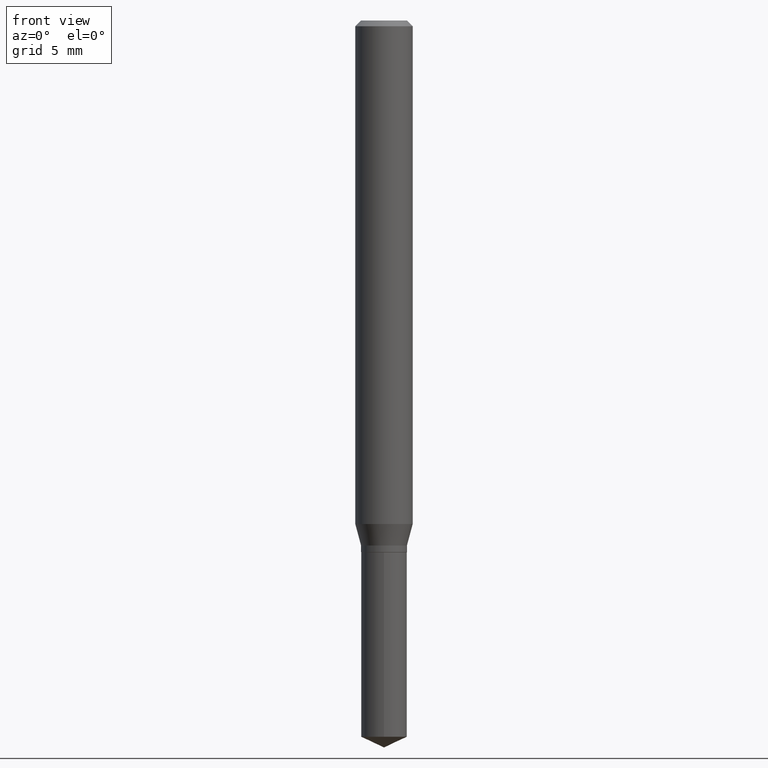
[diagram: clean part render]
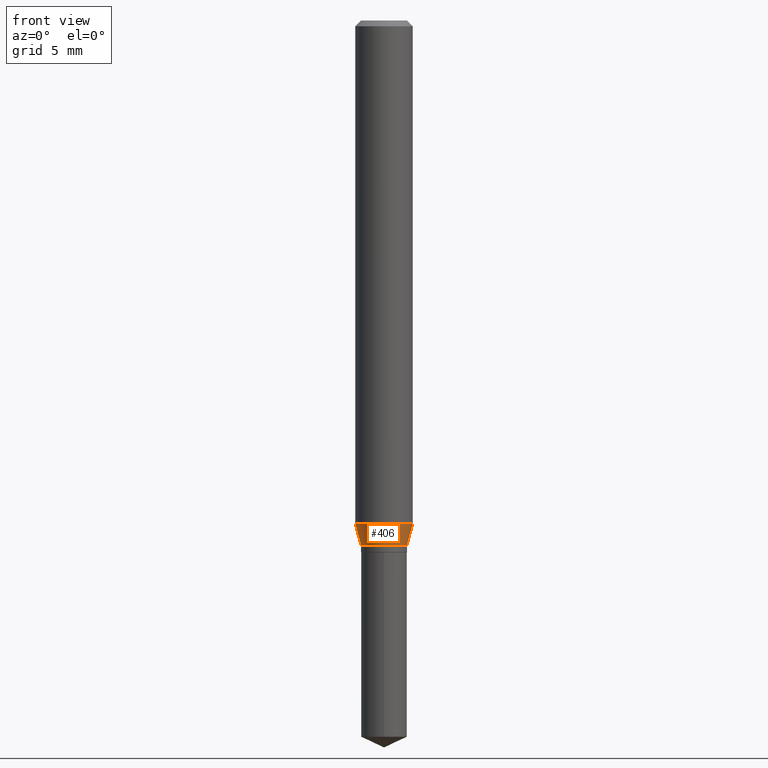
[diagram: same view with one face highlighted and labeled with its STEP entity id]
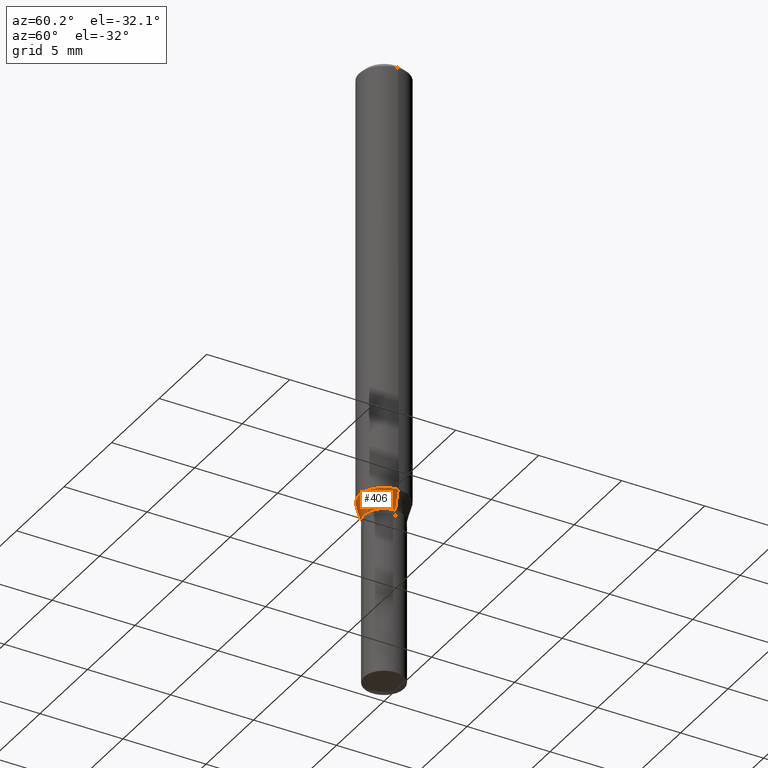
[diagram: same view with one face highlighted and labeled with its STEP entity id]
A machine part, front view. The second image highlights one B-rep face of the part: STEP entity #406.
A second angle (auxiliary view) of the same face is appended — the face is thin or edge-on in the first view.
In plain terms, the highlighted conical surface has half-angle 15 deg.
Its self-contained STEP definition (entity closure, byte-faithful):
#6 = DIRECTION ( 'NONE',  ( 1.000000000000000000, -6.982962677686269077E-15, 0.000000000000000000 ) ) ;
#14 = CARTESIAN_POINT ( 'NONE',  ( -0.05905000000000013016, -3.198513253033061898E-15, -1.036261800470686723 ) ) ;
#24 = VERTEX_POINT ( 'NONE', #223 ) ;
#30 = ORIENTED_EDGE ( 'NONE', *, *, #217, .F. ) ;
#37 = DIRECTION ( 'NONE',  ( 1.000000000000000000, -6.982962677686265133E-15, 0.000000000000000000 ) ) ;
#43 = DIRECTION ( 'NONE',  ( 0.2588190451025214611, 1.565188264969620982E-15, 0.9659258262890679791 ) ) ;
#53 = VECTOR ( 'NONE', #43, 39.37007874015748143 ) ;
#70 = ORIENTED_EDGE ( 'NONE', *, *, #389, .T. ) ;
#89 = CARTESIAN_POINT ( 'NONE',  ( -0.04724999999999997952, -3.460032494876678049E-15, -1.080300000000000038 ) ) ;
#103 = DIRECTION ( 'NONE',  ( -2.445468806185136597E-29, 3.491481338843145583E-15, 1.000000000000000000 ) ) ;
#113 = AXIS2_PLACEMENT_3D ( 'NONE', #285, #251, #6 ) ;
#114 = DIRECTION ( 'NONE',  ( 1.000000000000000000, -6.982962677686269077E-15, 0.000000000000000000 ) ) ;
#122 = CIRCLE ( 'NONE', #229, 0.05905000000000013016 ) ;
#156 = CARTESIAN_POINT ( 'NONE',  ( 2.534145908092310761E-29, -3.618088738499401785E-15, -1.036261800470686723 ) ) ;
#175 = EDGE_CURVE ( 'NONE', #336, #416, #418, .T. ) ;
#209 = LINE ( 'NONE', #361, #53 ) ;
#217 = EDGE_CURVE ( 'NONE', #416, #378, #122, .T. ) ;
#223 = CARTESIAN_POINT ( 'NONE',  ( 0.04724999999999997952, -4.101792276872925713E-15, -1.080300000000000038 ) ) ;
#229 = AXIS2_PLACEMENT_3D ( 'NONE', #156, #103, #37 ) ;
#237 = DIRECTION ( 'NONE',  ( -0.2588190451025214611, 5.211531920934550253E-15, 0.9659258262890679791 ) ) ;
#251 = DIRECTION ( 'NONE',  ( -2.445468806185136597E-29, 3.491481338843145583E-15, 1.000000000000000000 ) ) ;
#258 = ORIENTED_EDGE ( 'NONE', *, *, #308, .T. ) ;
#270 = CIRCLE ( 'NONE', #113, 0.04724999999999997952 ) ;
#285 = CARTESIAN_POINT ( 'NONE',  ( 2.641839951321803071E-29, -3.771847290352249705E-15, -1.080300000000000038 ) ) ;
#308 = EDGE_CURVE ( 'NONE', #24, #378, #209, .T. ) ;
#336 = VERTEX_POINT ( 'NONE', #89 ) ;
#348 = AXIS2_PLACEMENT_3D ( 'NONE', #360, #436, #114 ) ;
#355 = VECTOR ( 'NONE', #237, 39.37007874015748143 ) ;
#360 = CARTESIAN_POINT ( 'NONE',  ( 2.641839951321803071E-29, -3.771847290352249705E-15, -1.080300000000000038 ) ) ;
#361 = CARTESIAN_POINT ( 'NONE',  ( 0.04724999999999997952, -4.101792276872925713E-15, -1.080300000000000038 ) ) ;
#378 = VERTEX_POINT ( 'NONE', #463 ) ;
#389 = EDGE_CURVE ( 'NONE', #336, #24, #270, .T. ) ;
#406 = ADVANCED_FACE ( 'NONE', ( #468 ), #411, .T. ) ;
#411 = CONICAL_SURFACE ( 'NONE', #348, 0.04724999999999997952, 0.2617993877991501850 ) ;
#416 = VERTEX_POINT ( 'NONE', #14 ) ;
#418 = LINE ( 'NONE', #487, #355 ) ;
#436 = DIRECTION ( 'NONE',  ( -2.445468806185136597E-29, 3.491481338843145583E-15, 1.000000000000000000 ) ) ;
#443 = EDGE_LOOP ( 'NONE', ( #453, #70, #258, #30 ) ) ;
#453 = ORIENTED_EDGE ( 'NONE', *, *, #175, .F. ) ;
#463 = CARTESIAN_POINT ( 'NONE',  ( 0.05905000000000013016, -4.030432684616777494E-15, -1.036261800470686723 ) ) ;
#468 = FACE_OUTER_BOUND ( 'NONE', #443, .T. ) ;
#487 = CARTESIAN_POINT ( 'NONE',  ( -0.04724999999999997952, -3.436115847705603055E-15, -1.080300000000000038 ) ) ;